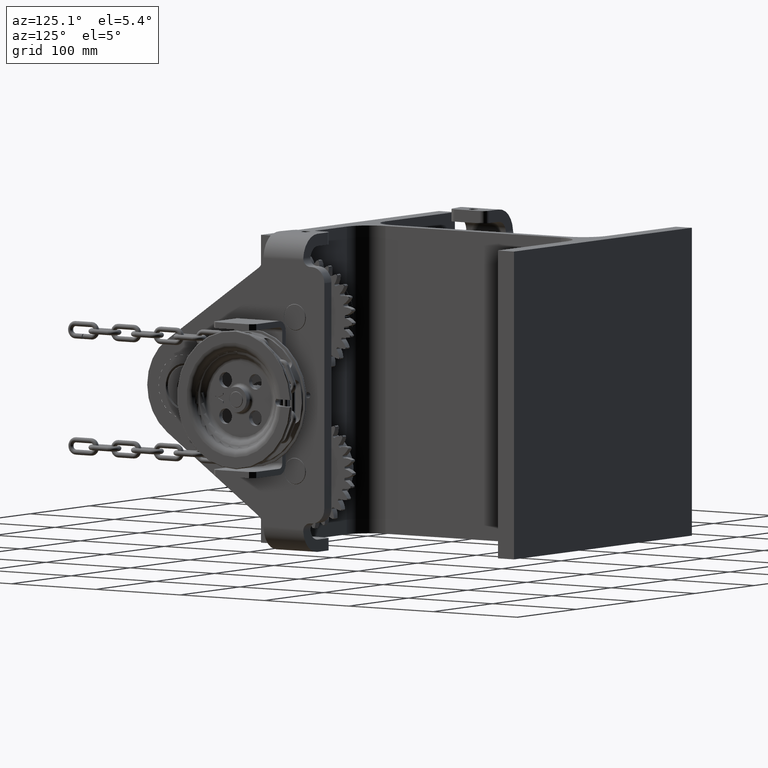
[diagram: clean part render]
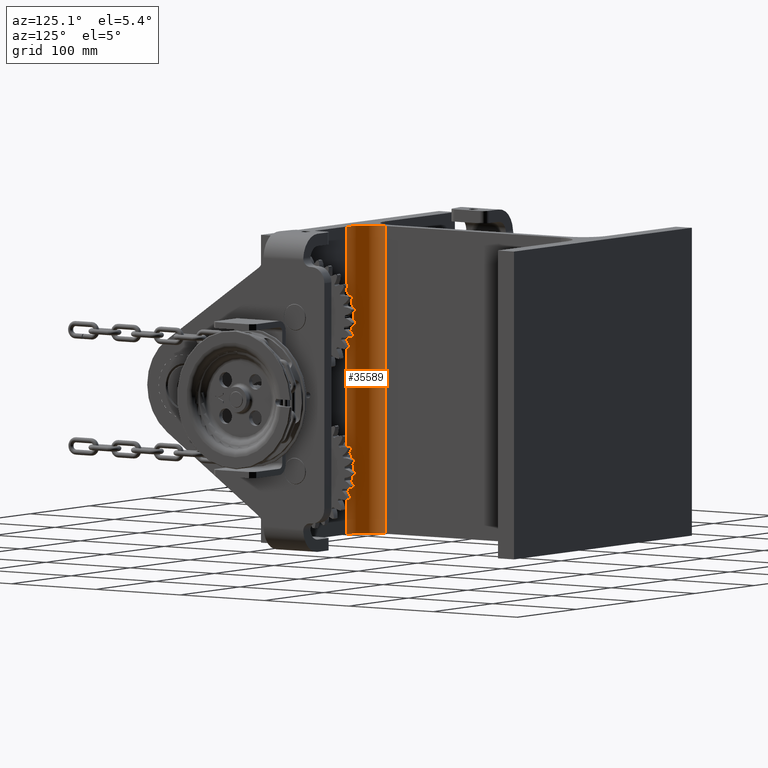
[diagram: same view with one face highlighted and labeled with its STEP entity id]
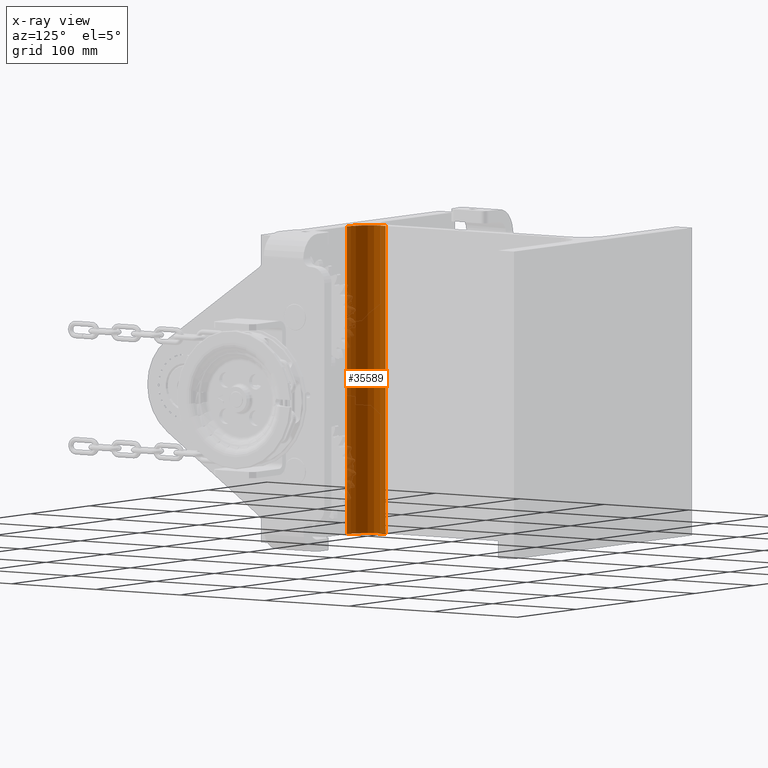
[diagram: x-ray of the same camera — body ghosted, the highlighted face saturated]
A machine part, auxiliary view. The second image highlights one B-rep face of the part: STEP entity #35589.
The next image is the same camera in x-ray: the body ghosted, the highlighted face saturated — about 4% of this face is hidden behind the body in this view.
In plain terms, the highlighted cylindrical surface (edge-blend (fillet) strip) has radius 27 mm, axis along (0, 0, 1).
Its self-contained STEP definition (entity closure, byte-faithful):
#243 = FACE_OUTER_BOUND ( 'NONE', #27480, .T. ) ;
#254 = CARTESIAN_POINT ( 'NONE',  ( 32.49999999999961600, -103.9999999999999300, -150.0000000000000000 ) ) ;
#2696 = ORIENTED_EDGE ( 'NONE', *, *, #13686, .F. ) ;
#3876 = CARTESIAN_POINT ( 'NONE',  ( 32.49999999999962300, -130.9999999999999100, 150.0000000000000000 ) ) ;
#4881 = AXIS2_PLACEMENT_3D ( 'NONE', #254, #47279, #42728 ) ;
#6765 = VECTOR ( 'NONE', #54177, 1000.000000000000000 ) ;
#8425 = CARTESIAN_POINT ( 'NONE',  ( 32.49999999999961600, -103.9999999999999300, 150.0000000000000000 ) ) ;
#8522 = DIRECTION ( 'NONE',  ( 0.0000000000000000000, 0.0000000000000000000, 1.000000000000000000 ) ) ;
#11369 = CARTESIAN_POINT ( 'NONE',  ( 32.49999999999961600, -103.9999999999999300, -150.0000000000000000 ) ) ;
#13050 = VERTEX_POINT ( 'NONE', #21921 ) ;
#13686 = EDGE_CURVE ( 'NONE', #47925, #55276, #40225, .T. ) ;
#15030 = CARTESIAN_POINT ( 'NONE',  ( 5.499999999999619900, -103.9999999999999300, -150.0000000000000000 ) ) ;
#15379 = EDGE_CURVE ( 'NONE', #36097, #13050, #41838, .T. ) ;
#21921 = CARTESIAN_POINT ( 'NONE',  ( 5.499999999999619900, -103.9999999999999300, -150.0000000000000000 ) ) ;
#22154 = CARTESIAN_POINT ( 'NONE',  ( 5.499999999999619900, -103.9999999999999300, 150.0000000000000000 ) ) ;
#23831 = EDGE_CURVE ( 'NONE', #13050, #55276, #41323, .T. ) ;
#26740 = AXIS2_PLACEMENT_3D ( 'NONE', #8425, #47260, #43070 ) ;
#27480 = EDGE_LOOP ( 'NONE', ( #2696, #53248, #32144, #49302 ) ) ;
#27536 = CARTESIAN_POINT ( 'NONE',  ( 32.49999999999962300, -130.9999999999999100, -150.0000000000000000 ) ) ;
#29407 = AXIS2_PLACEMENT_3D ( 'NONE', #11369, #38470, #47361 ) ;
#32144 = ORIENTED_EDGE ( 'NONE', *, *, #15379, .T. ) ;
#32165 = EDGE_CURVE ( 'NONE', #36097, #47925, #49230, .T. ) ;
#35589 = ADVANCED_FACE ( 'NONE', ( #243 ), #48425, .F. ) ;
#36097 = VERTEX_POINT ( 'NONE', #27536 ) ;
#37656 = VECTOR ( 'NONE', #8522, 1000.000000000000000 ) ;
#38470 = DIRECTION ( 'NONE',  ( -0.0000000000000000000, -0.0000000000000000000, -1.000000000000000000 ) ) ;
#40225 = CIRCLE ( 'NONE', #26740, 27.00000000000000400 ) ;
#41323 = LINE ( 'NONE', #15030, #6765 ) ;
#41838 = CIRCLE ( 'NONE', #29407, 27.00000000000000400 ) ;
#42430 = CARTESIAN_POINT ( 'NONE',  ( 32.49999999999962300, -130.9999999999999100, -150.0000000000000000 ) ) ;
#42728 = DIRECTION ( 'NONE',  ( 1.000000000000000000, 0.0000000000000000000, 0.0000000000000000000 ) ) ;
#43070 = DIRECTION ( 'NONE',  ( -1.000000000000000000, 0.0000000000000000000, 0.0000000000000000000 ) ) ;
#47260 = DIRECTION ( 'NONE',  ( -0.0000000000000000000, -0.0000000000000000000, -1.000000000000000000 ) ) ;
#47279 = DIRECTION ( 'NONE',  ( 0.0000000000000000000, 0.0000000000000000000, 1.000000000000000000 ) ) ;
#47361 = DIRECTION ( 'NONE',  ( -1.000000000000000000, 0.0000000000000000000, 0.0000000000000000000 ) ) ;
#47925 = VERTEX_POINT ( 'NONE', #3876 ) ;
#48425 = CYLINDRICAL_SURFACE ( 'NONE', #4881, 27.00000000000000400 ) ;
#49230 = LINE ( 'NONE', #42430, #37656 ) ;
#49302 = ORIENTED_EDGE ( 'NONE', *, *, #23831, .T. ) ;
#53248 = ORIENTED_EDGE ( 'NONE', *, *, #32165, .F. ) ;
#54177 = DIRECTION ( 'NONE',  ( 0.0000000000000000000, 0.0000000000000000000, 1.000000000000000000 ) ) ;
#55276 = VERTEX_POINT ( 'NONE', #22154 ) ;